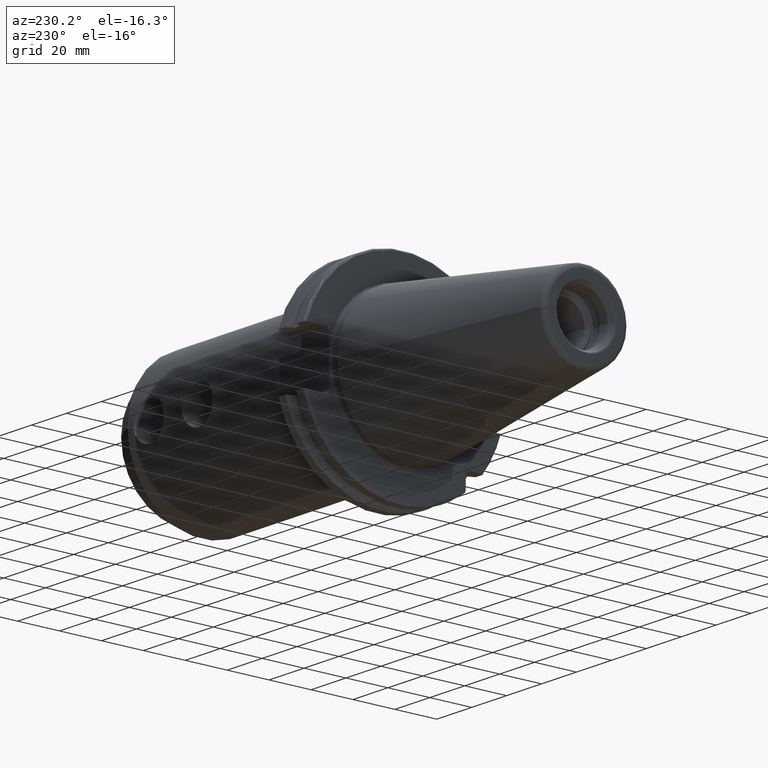
[diagram: clean part render]
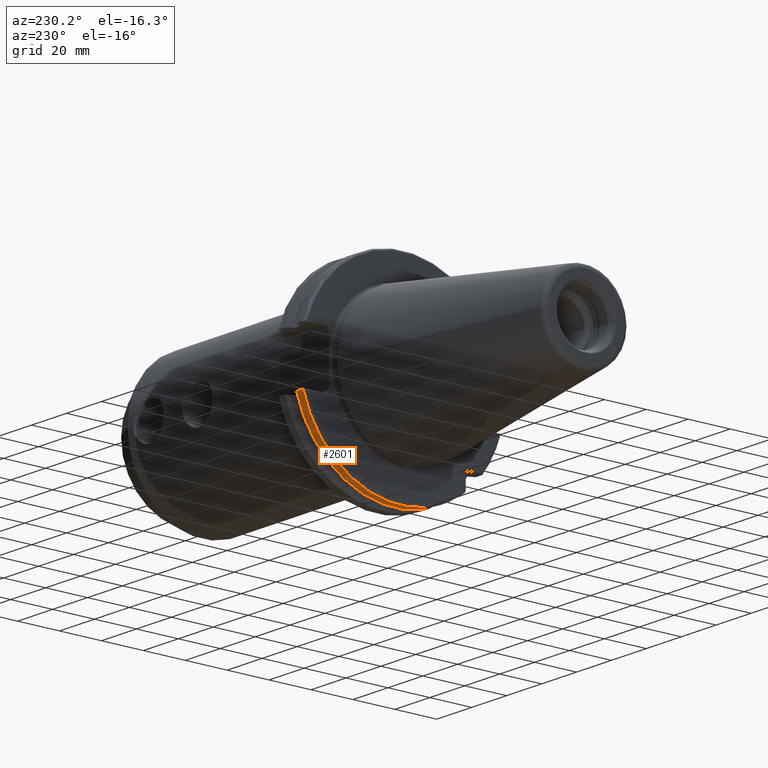
[diagram: same view with one face highlighted and labeled with its STEP entity id]
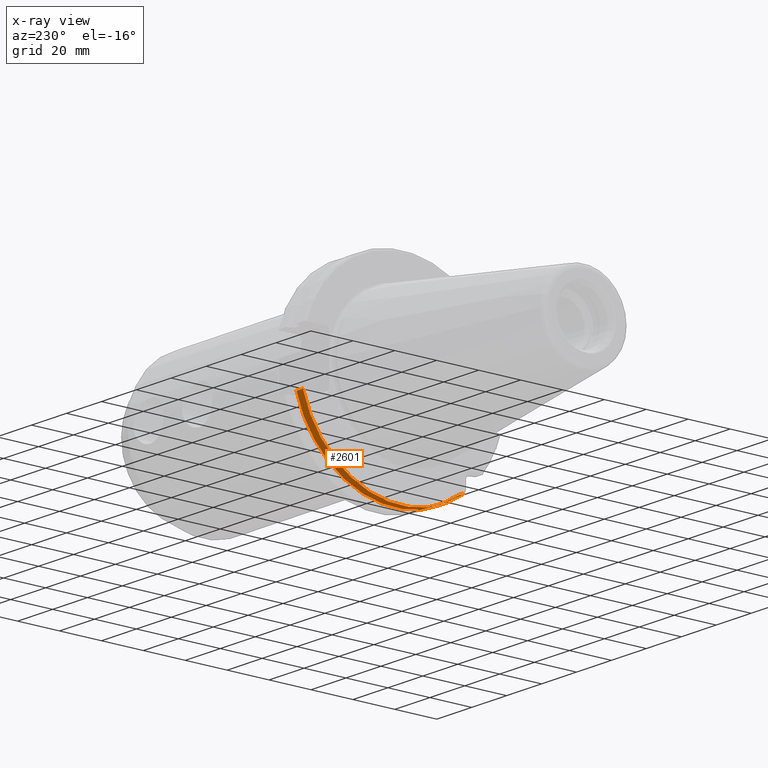
[diagram: x-ray of the same camera — body ghosted, the highlighted face saturated]
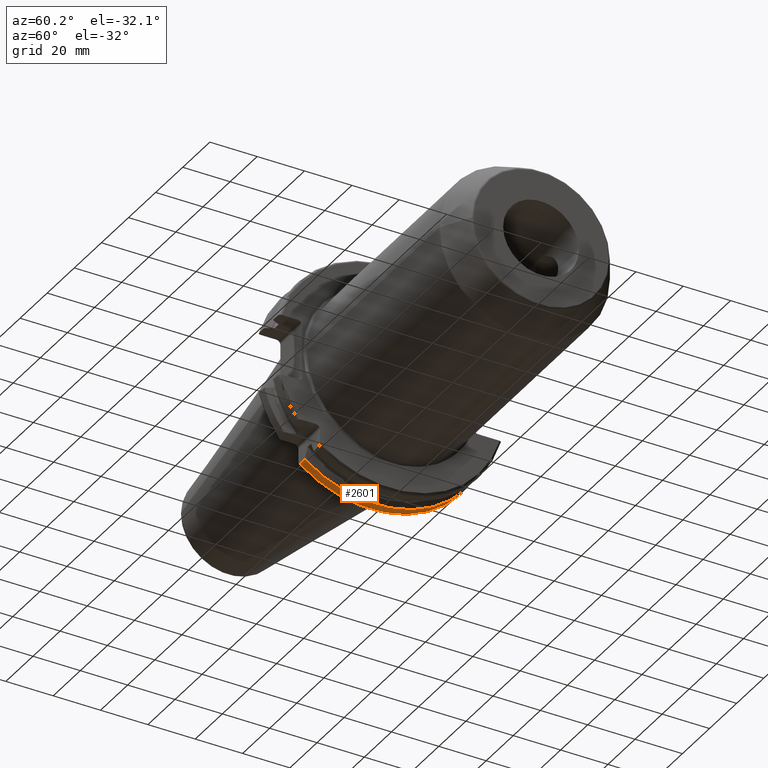
[diagram: same view with one face highlighted and labeled with its STEP entity id]
A machine part, auxiliary view. The second image highlights one B-rep face of the part: STEP entity #2601.
The next image is the same camera in x-ray: the body ghosted, the highlighted face saturated — about 0% of this face is hidden behind the body in this view.
A second angle (auxiliary view) of the same face is appended — the face is thin or edge-on in the first view.
In plain terms, the highlighted cylindrical surface (partial cylindrical patch) has radius 48.7375 mm, axis along (1, 0, 0).
Its self-contained STEP definition (entity closure, byte-faithful):
#748=DIRECTION('',(1.E0,0.E0,0.E0));
#749=VECTOR('',#748,3.734621614173E0);
#750=CARTESIAN_POINT('',(4.2E0,4.699929686974E1,-1.29E1));
#751=LINE('',#750,#749);
#752=DIRECTION('',(1.E0,0.E0,0.E0));
#753=VECTOR('',#752,3.734621614173E0);
#754=CARTESIAN_POINT('',(4.2E0,-2.985E1,-3.852689198793E1));
#755=LINE('',#754,#753);
#756=CARTESIAN_POINT('',(7.934621614173E0,0.E0,0.E0));
#757=DIRECTION('',(1.E0,0.E0,0.E0));
#758=DIRECTION('',(0.E0,-6.124647345473E-1,-7.904979120376E-1));
#759=AXIS2_PLACEMENT_3D('',#756,#757,#758);
#831=CARTESIAN_POINT('',(4.2E0,0.E0,0.E0));
#832=DIRECTION('',(-1.E0,0.E0,0.E0));
#833=DIRECTION('',(0.E0,9.643354064066E-1,-2.646832521159E-1));
#834=AXIS2_PLACEMENT_3D('',#831,#832,#833);
#886=CARTESIAN_POINT('',(7.934621614173E0,4.699929686974E1,-1.29E1));
#893=CARTESIAN_POINT('',(7.934621614173E0,-2.985E1,-3.852689198793E1));
#1700=VERTEX_POINT('',#886);
#1710=CARTESIAN_POINT('',(4.2E0,4.699929686974E1,-1.29E1));
#1711=VERTEX_POINT('',#1710);
#1749=CARTESIAN_POINT('',(4.2E0,-2.985E1,-3.852689198793E1));
#1750=VERTEX_POINT('',#1749);
#1847=VERTEX_POINT('',#893);
#2587=CARTESIAN_POINT('',(-1.076325E2,0.E0,0.E0));
#2588=DIRECTION('',(1.E0,0.E0,0.E0));
#2589=DIRECTION('',(0.E0,-1.E0,0.E0));
#2590=AXIS2_PLACEMENT_3D('',#2587,#2588,#2589);
#2591=CYLINDRICAL_SURFACE('',#2590,4.87375E1);
#2592=ORIENTED_EDGE('',*,*,#2388,.F.);
#2594=ORIENTED_EDGE('',*,*,#2593,.T.);
#2596=ORIENTED_EDGE('',*,*,#2595,.T.);
#2598=ORIENTED_EDGE('',*,*,#2597,.T.);
#2599=EDGE_LOOP('',(#2592,#2594,#2596,#2598));
#2600=FACE_OUTER_BOUND('',#2599,.F.);
#2601=ADVANCED_FACE('',(#2600),#2591,.T.);
#760=CIRCLE('',#759,4.87375E1);
#835=CIRCLE('',#834,4.87375E1);
#2388=EDGE_CURVE('',#1711,#1700,#751,.T.);
#2593=EDGE_CURVE('',#1711,#1750,#835,.T.);
#2595=EDGE_CURVE('',#1750,#1847,#755,.T.);
#2597=EDGE_CURVE('',#1847,#1700,#760,.T.);